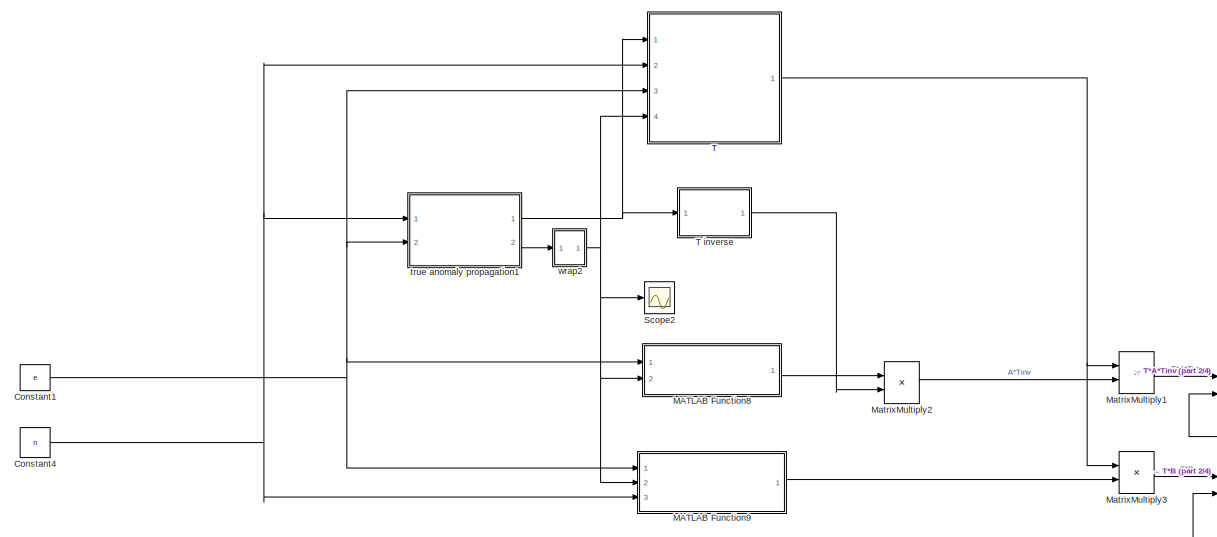
[diagram: root canvas - part 1/4, top center region]
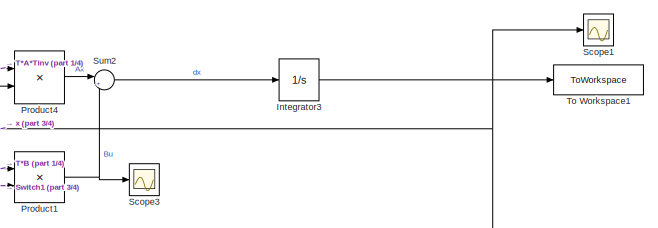
[diagram: root canvas - part 2/4, middle right region]
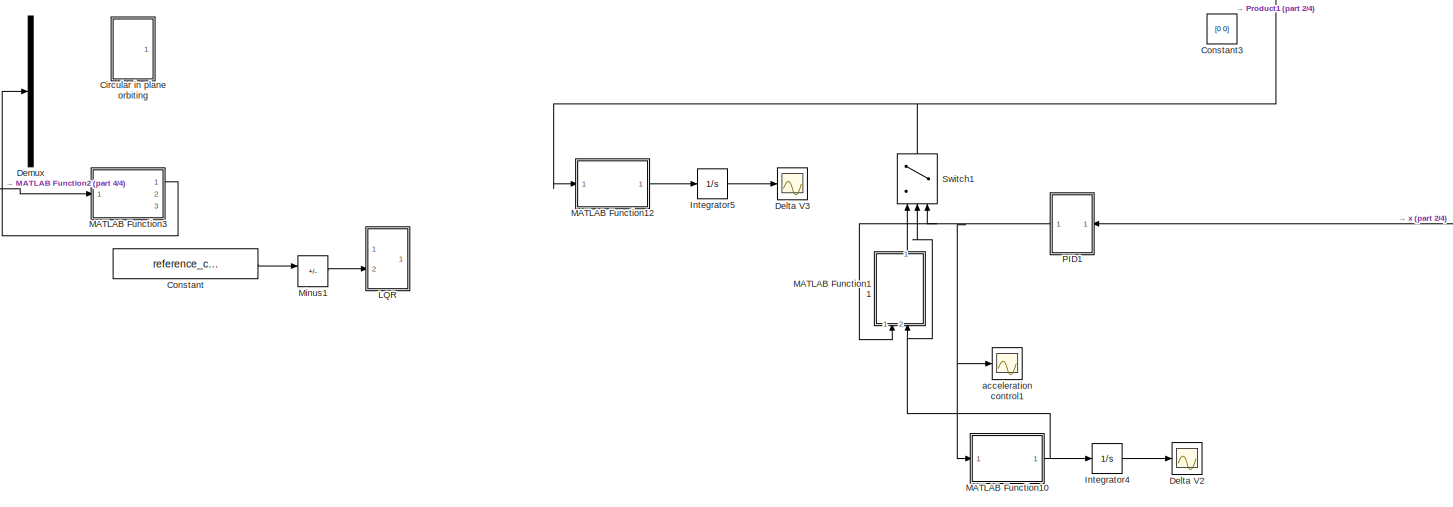
[diagram: root canvas - part 3/4, bottom center region]
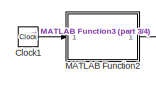
[diagram: root canvas - part 4/4, bottom left region]
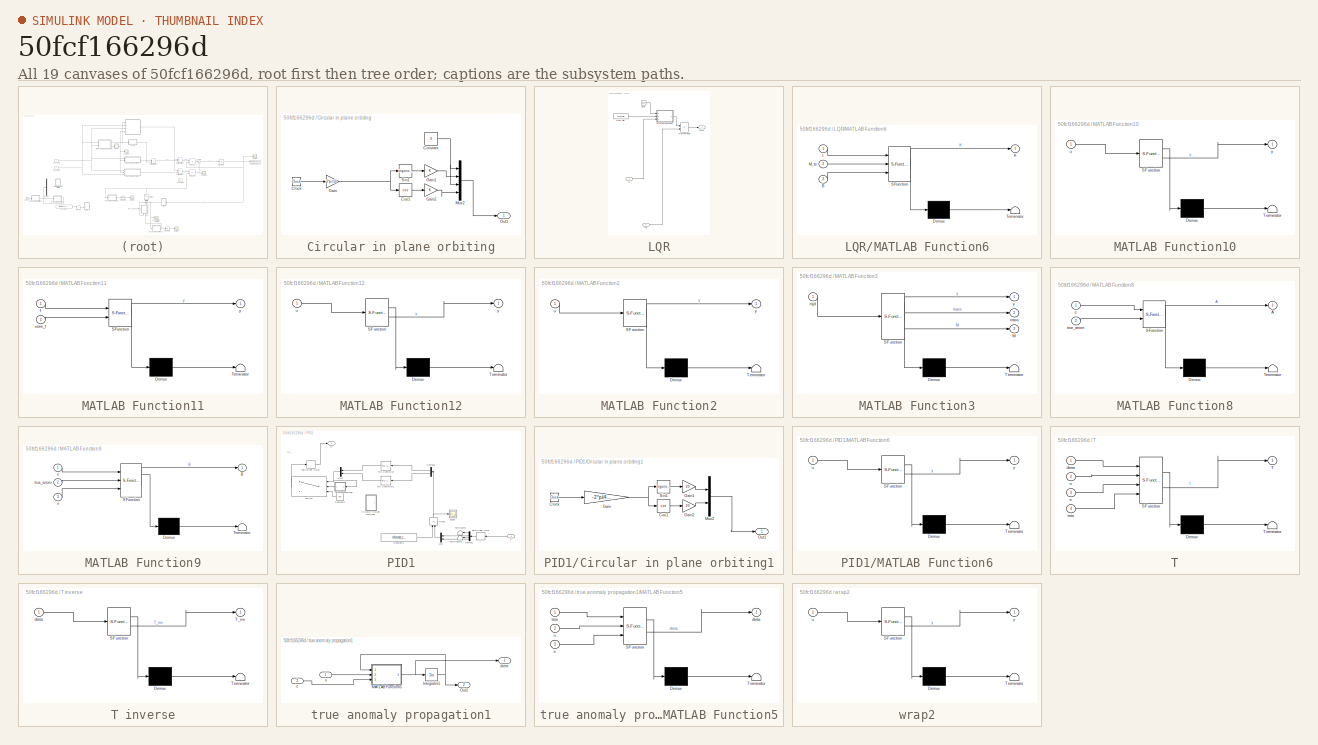
[diagram: thumbnail index - all 19 canvases of the model, root first then tree order]
MODEL slx_50fcf166296d
KIND model
CONFIG AbsTol = auto
CONFIG EnableMultiTasking = off
CONFIG FixedStep = auto
CONFIG MaxStep = auto
CONFIG MinStep = auto
CONFIG RelTol = 1e-3
CONFIG SampleTimeConstraint = Unconstrained
CONFIG SolverName = VariableStepAuto
CONFIG StartTime = 0.0
CONFIG StopTime = 10000
BLOCK [SubSystem] Circular in plane orbiting
  Commented = on
  Ports = [0, 1]
  RequestExecContextInheritance = off
BLOCK [Clock] Circular in plane orbiting/Clock
BLOCK [Constant] Circular in plane orbiting/Constant
  Value = 0
BLOCK [Trigonometry] Circular in plane orbiting/Cos1
  Operator = cos
  Ports = [1, 1]
BLOCK [Gain] Circular in plane orbiting/Gain
  Gain = -2*pi/10
BLOCK [Gain] Circular in plane orbiting/Gain1
BLOCK [Gain] Circular in plane orbiting/Gain2
BLOCK [Mux] Circular in plane orbiting/Mux2
  DisplayOption = bar
  Ports = [4, 1]
BLOCK [Outport] Circular in plane orbiting/Out1
BLOCK [Trigonometry] Circular in plane orbiting/Sin1
  Ports = [1, 1]
BLOCK [Clock] Clock1
  Commented = on
BLOCK [Constant] Constant
  Commented = on
  Value = reference_conds
BLOCK [Constant] Constant1
  Value = e
BLOCK [Constant] Constant3
  Commented = on
  Value = [0 0]
BLOCK [Constant] Constant4
  Value = n
BLOCK [Scope] Delta V2
  Floating = off
  NumInputPorts = 1
  Ports = [1]
  ScopeSpecificationString = Simulink.scopes.TimeScopeBlockCfg('CurrentConfiguration', extmgr.ConfigurationSet(extmgr.Configuration('Core','General UI',true),extmgr.Configuration('Core','Source UI',true),extmgr.Configuration('Sources','WiredSimulink',true,'DataLoggingVariableName','ScopeData4'),extmgr.Configuration('Visuals','Time Domain',true,'SerializedDisplays',{struct('MinYLimReal','-0.68281','MaxYLimReal','6.14531','YLab...<+1397ch>
BLOCK [Scope] Delta V3
  Floating = off
  NumInputPorts = 1
  Ports = [1]
  ScopeSpecificationString = Simulink.scopes.TimeScopeBlockCfg('CurrentConfiguration', extmgr.ConfigurationSet(extmgr.Configuration('Core','General UI',true),extmgr.Configuration('Core','Source UI',true),extmgr.Configuration('Sources','WiredSimulink',true,'DataLoggingVariableName','ScopeData5'),extmgr.Configuration('Visuals','Time Domain',true,'SerializedDisplays',{struct('MinYLimReal','-107.91961','MaxYLimReal','971.27648','...<+1411ch>
BLOCK [Demux] Demux
  Commented = on
  Outputs = 6
  Ports = [1, 6]
BLOCK [Integrator] Integrator3
  InitialCondition = init_conds
  Ports = [1, 1]
BLOCK [Integrator] Integrator4
  Ports = [1, 1]
BLOCK [Integrator] Integrator5
  Ports = [1, 1]
BLOCK [SubSystem] LQR
  Commented = on
  Ports = [2, 1]
  RequestExecContextInheritance = off
BLOCK [Inport] LQR/B
BLOCK [Clock] LQR/Clock
BLOCK [FromFile] LQR/From File
  FileName = M_LQR.mat
  SampleTime = 0
BLOCK [Inport] LQR/In2
  Port = 2
BLOCK [SubSystem] LQR/MATLAB Function6
  ErrorFcn = Stateflow.Translate.translate
  PermitHierarchicalResolution = ExplicitOnly
  Ports = [3, 1]
  RequestExecContextInheritance = off
  SFBlockType = MATLAB Function
  TreatAsAtomicUnit = on
BLOCK [Demux] LQR/MATLAB Function6/ Demux 
  Outputs = 1
  Ports = [1, 1]
BLOCK [S-Function] LQR/MATLAB Function6/ SFunction 
  EnableBusSupport = on
  FunctionName = sf_sfun
  PortCounts = [3 2]
  Ports = [3, 2]
  SFcnIsStateOwnerBlock = off
  SFunctionDeploymentMode = off
  Tag = Stateflow S-Function 7
BLOCK [Terminator] LQR/MATLAB Function6/ Terminator 
BLOCK [Inport] LQR/MATLAB Function6/B
  Port = 3
BLOCK [Outport] LQR/MATLAB Function6/K
BLOCK [Inport] LQR/MATLAB Function6/M_ts
  Port = 2
BLOCK [Inport] LQR/MATLAB Function6/t
BLOCK [Product] LQR/MatrixMultiply
  Multiplication = Matrix(*)
  Ports = [2, 1]
BLOCK [Outport] LQR/Out1
BLOCK [SubSystem] MATLAB Function10
  ErrorFcn = Stateflow.Translate.translate
  PermitHierarchicalResolution = ExplicitOnly
  Ports = [1, 1]
  RequestExecContextInheritance = off
  SFBlockType = MATLAB Function
  TreatAsAtomicUnit = on
BLOCK [Demux] MATLAB Function10/ Demux 
  Outputs = 1
  Ports = [1, 1]
BLOCK [S-Function] MATLAB Function10/ SFunction 
  EnableBusSupport = on
  FunctionName = sf_sfun
  PortCounts = [1 2]
  Ports = [1, 2]
  SFcnIsStateOwnerBlock = off
  SFunctionDeploymentMode = off
  Tag = Stateflow S-Function 20
BLOCK [Terminator] MATLAB Function10/ Terminator 
BLOCK [Inport] MATLAB Function10/u
BLOCK [Outport] MATLAB Function10/y
BLOCK [SubSystem] MATLAB Function11
  ErrorFcn = Stateflow.Translate.translate
  NameLocation = right
  PermitHierarchicalResolution = ExplicitOnly
  Ports = [2, 1]
  RequestExecContextInheritance = off
  SFBlockType = MATLAB Function
  TreatAsAtomicUnit = on
BLOCK [Demux] MATLAB Function11/ Demux 
  Outputs = 1
  Ports = [1, 1]
BLOCK [S-Function] MATLAB Function11/ SFunction 
  EnableBusSupport = on
  FunctionName = sf_sfun
  PortCounts = [2 2]
  Ports = [2, 2]
  SFcnIsStateOwnerBlock = off
  SFunctionDeploymentMode = off
  Tag = Stateflow S-Function 21
BLOCK [Terminator] MATLAB Function11/ Terminator 
BLOCK [Inport] MATLAB Function11/f
BLOCK [Inport] MATLAB Function11/norm_f
  Port = 2
BLOCK [Outport] MATLAB Function11/y
BLOCK [SubSystem] MATLAB Function12
  ErrorFcn = Stateflow.Translate.translate
  PermitHierarchicalResolution = ExplicitOnly
  Ports = [1, 1]
  RequestExecContextInheritance = off
  SFBlockType = MATLAB Function
  TreatAsAtomicUnit = on
BLOCK [Demux] MATLAB Function12/ Demux 
  Outputs = 1
  Ports = [1, 1]
BLOCK [S-Function] MATLAB Function12/ SFunction 
  EnableBusSupport = on
  FunctionName = sf_sfun
  PortCounts = [1 2]
  Ports = [1, 2]
  SFcnIsStateOwnerBlock = off
  SFunctionDeploymentMode = off
  Tag = Stateflow S-Function 22
BLOCK [Terminator] MATLAB Function12/ Terminator 
BLOCK [Inport] MATLAB Function12/u
BLOCK [Outport] MATLAB Function12/y
BLOCK [SubSystem] MATLAB Function2
  Commented = on
  ErrorFcn = Stateflow.Translate.translate
  PermitHierarchicalResolution = ExplicitOnly
  Ports = [1, 1]
  RequestExecContextInheritance = off
  SFBlockType = MATLAB Function
  TreatAsAtomicUnit = on
BLOCK [Demux] MATLAB Function2/ Demux 
  Outputs = 1
  Ports = [1, 1]
BLOCK [S-Function] MATLAB Function2/ SFunction 
  EnableBusSupport = on
  FunctionName = sf_sfun
  PortCounts = [1 2]
  Ports = [1, 2]
  SFcnIsStateOwnerBlock = off
  SFunctionDeploymentMode = off
  Tag = Stateflow S-Function 3
BLOCK [Terminator] MATLAB Function2/ Terminator 
BLOCK [Inport] MATLAB Function2/u
BLOCK [Outport] MATLAB Function2/y
BLOCK [SubSystem] MATLAB Function3
  Commented = on
  ErrorFcn = Stateflow.Translate.translate
  PermitHierarchicalResolution = ExplicitOnly
  Ports = [1, 3]
  RequestExecContextInheritance = off
  SFBlockType = MATLAB Function
  TreatAsAtomicUnit = on
BLOCK [Demux] MATLAB Function3/ Demux 
  Outputs = 1
  Ports = [1, 1]
BLOCK [S-Function] MATLAB Function3/ SFunction 
  EnableBusSupport = on
  FunctionName = sf_sfun
  PortCounts = [1 4]
  Ports = [1, 4]
  SFcnIsStateOwnerBlock = off
  SFunctionDeploymentMode = off
  Tag = Stateflow S-Function 4
BLOCK [Terminator] MATLAB Function3/ Terminator 
BLOCK [Outport] MATLAB Function3/M
  Port = 3
BLOCK [Outport] MATLAB Function3/mass
  Port = 2
BLOCK [Inport] MATLAB Function3/mjd
BLOCK [Outport] MATLAB Function3/y
BLOCK [SubSystem] MATLAB Function8
  ErrorFcn = Stateflow.Translate.translate
  PermitHierarchicalResolution = ExplicitOnly
  Ports = [2, 1]
  RequestExecContextInheritance = off
  SFBlockType = MATLAB Function
  TreatAsAtomicUnit = on
BLOCK [Demux] MATLAB Function8/ Demux 
  Outputs = 1
  Ports = [1, 1]
BLOCK [S-Function] MATLAB Function8/ SFunction 
  EnableBusSupport = on
  FunctionName = sf_sfun
  PortCounts = [2 2]
  Ports = [2, 2]
  SFcnIsStateOwnerBlock = off
  SFunctionDeploymentMode = off
  Tag = Stateflow S-Function 14
BLOCK [Terminator] MATLAB Function8/ Terminator 
BLOCK [Outport] MATLAB Function8/A
BLOCK [Inport] MATLAB Function8/e
BLOCK [Inport] MATLAB Function8/true_anom
  Port = 2
BLOCK [SubSystem] MATLAB Function9
  ErrorFcn = Stateflow.Translate.translate
  PermitHierarchicalResolution = ExplicitOnly
  Ports = [3, 1]
  RequestExecContextInheritance = off
  SFBlockType = MATLAB Function
  TreatAsAtomicUnit = on
BLOCK [Demux] MATLAB Function9/ Demux 
  Outputs = 1
  Ports = [1, 1]
BLOCK [S-Function] MATLAB Function9/ SFunction 
  EnableBusSupport = on
  FunctionName = sf_sfun
  PortCounts = [3 2]
  Ports = [3, 2]
  SFcnIsStateOwnerBlock = off
  SFunctionDeploymentMode = off
  Tag = Stateflow S-Function 15
BLOCK [Terminator] MATLAB Function9/ Terminator 
BLOCK [Outport] MATLAB Function9/B
BLOCK [Inport] MATLAB Function9/e
BLOCK [Inport] MATLAB Function9/n
  Port = 3
BLOCK [Inport] MATLAB Function9/true_anom
  Port = 2
BLOCK [Product] MatrixMultiply1
  Multiplication = Matrix(*)
  Ports = [2, 1]
BLOCK [Product] MatrixMultiply2
  Multiplication = Matrix(*)
  Ports = [2, 1]
BLOCK [Product] MatrixMultiply3
  Multiplication = Matrix(*)
  Ports = [2, 1]
BLOCK [Sum] Minus1
  Commented = on
  IconShape = rectangular
  Inputs = +-
  Ports = [2, 1]
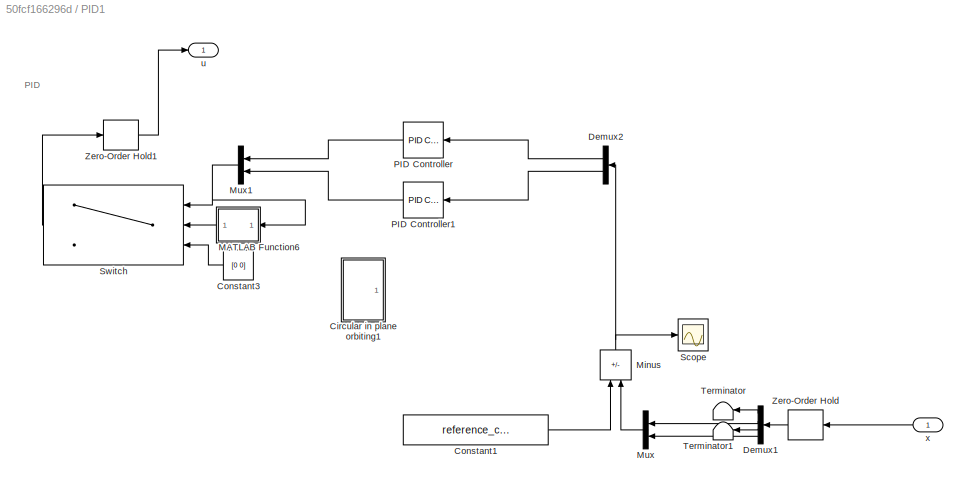
BLOCK [SubSystem] PID1
  NameLocation = top
  Ports = [1, 1]
  RequestExecContextInheritance = off
BLOCK [SubSystem] PID1/Circular in plane orbiting1
  Commented = on
  Ports = [0, 1]
  RequestExecContextInheritance = off
BLOCK [Clock] PID1/Circular in plane orbiting1/Clock
BLOCK [Trigonometry] PID1/Circular in plane orbiting1/Cos1
  Operator = cos
  Ports = [1, 1]
BLOCK [Gain] PID1/Circular in plane orbiting1/Gain
  Gain = -2*pi/43200
BLOCK [Gain] PID1/Circular in plane orbiting1/Gain1
  Gain = 20
BLOCK [Gain] PID1/Circular in plane orbiting1/Gain2
  Gain = 20
BLOCK [Mux] PID1/Circular in plane orbiting1/Mux2
  DisplayOption = bar
  Inputs = 2
  Ports = [2, 1]
BLOCK [Outport] PID1/Circular in plane orbiting1/Out1
BLOCK [Trigonometry] PID1/Circular in plane orbiting1/Sin1
  Ports = [1, 1]
BLOCK [Constant] PID1/Constant1
  Value = reference_conds
BLOCK [Constant] PID1/Constant3
  NameLocation = top
  Value = [0 0]
BLOCK [Demux] PID1/Demux1
  NameLocation = top
  Ports = [1, 4]
BLOCK [Demux] PID1/Demux2
  NameLocation = top
  Outputs = 2
  Ports = [1, 2]
BLOCK [SubSystem] PID1/MATLAB Function6
  ErrorFcn = Stateflow.Translate.translate
  NameLocation = top
  PermitHierarchicalResolution = ExplicitOnly
  Ports = [1, 1]
  RequestExecContextInheritance = off
  SFBlockType = MATLAB Function
  TreatAsAtomicUnit = on
BLOCK [Demux] PID1/MATLAB Function6/ Demux 
  Outputs = 1
  Ports = [1, 1]
BLOCK [S-Function] PID1/MATLAB Function6/ SFunction 
  EnableBusSupport = on
  FunctionName = sf_sfun
  PortCounts = [1 2]
  Ports = [1, 2]
  SFcnIsStateOwnerBlock = off
  SFunctionDeploymentMode = off
  Tag = Stateflow S-Function 23
BLOCK [Terminator] PID1/MATLAB Function6/ Terminator 
BLOCK [Inport] PID1/MATLAB Function6/u
BLOCK [Outport] PID1/MATLAB Function6/y
BLOCK [Sum] PID1/Minus
  IconShape = rectangular
  Inputs = +-
  NameLocation = right
  Ports = [2, 1]
BLOCK [Mux] PID1/Mux
  DisplayOption = bar
  Inputs = 2
  NameLocation = top
  Ports = [2, 1]
BLOCK [Mux] PID1/Mux1
  DisplayOption = bar
  Inputs = 2
  NameLocation = top
  Ports = [2, 1]
BLOCK [Reference] PID1/PID Controller  REF=pid_lib/PID Controller
  NameLocation = top
  Ports = [1, 1]
  SourceBlock = pid_lib/PID Controller
  SourceProductBaseCode = SL
  SourceType = PID 1dof
BLOCK [Reference] PID1/PID Controller1  REF=pid_lib/PID Controller
  NameLocation = top
  Ports = [1, 1]
  SourceBlock = pid_lib/PID Controller
  SourceProductBaseCode = SL
  SourceType = PID 1dof
BLOCK [Scope] PID1/Scope
  Floating = off
  NumInputPorts = 1
  Ports = [1]
  ScopeSpecificationString = Simulink.scopes.TimeScopeBlockCfg('CurrentConfiguration', extmgr.ConfigurationSet(extmgr.Configuration('Core','General UI',true),extmgr.Configuration('Core','Source UI',true),extmgr.Configuration('Sources','WiredSimulink',true,'DataLoggingVariableName','ScopeData2'),extmgr.Configuration('Visuals','Time Domain',true,'SerializedDisplays',{struct('MinYLimReal','-12.40221','MaxYLimReal','23.60025','YL...<+1382ch>
BLOCK [Switch] PID1/Switch
  Criteria = u2 > Threshold
  InputSameDT = off
  NameLocation = top
  SaturateOnIntegerOverflow = off
  Threshold = 10^(-8)
BLOCK [Terminator] PID1/Terminator
  NameLocation = top
BLOCK [Terminator] PID1/Terminator1
  NameLocation = top
BLOCK [ZeroOrderHold] PID1/Zero-Order Hold
  NameLocation = top
BLOCK [ZeroOrderHold] PID1/Zero-Order Hold1
BLOCK [Outport] PID1/u
BLOCK [Inport] PID1/x
  NameLocation = top
BLOCK [Product] Product1
  Multiplication = Matrix(*)
  Ports = [2, 1]
  SCDEnableBlockLinearizationSpecification = on
BLOCK [Product] Product4
  Multiplication = Matrix(*)
  NameLocation = top
  Ports = [2, 1]
  SCDEnableBlockLinearizationSpecification = on
BLOCK [Scope] Scope1
  Floating = off
  NumInputPorts = 1
  Ports = [1]
  ScopeSpecificationString = Simulink.scopes.TimeScopeBlockCfg('CurrentConfiguration', extmgr.ConfigurationSet(extmgr.Configuration('Core','General UI',true),extmgr.Configuration('Core','Source UI',true),extmgr.Configuration('Sources','WiredSimulink',true,'DataLoggingVariableName','ScopeData1'),extmgr.Configuration('Visuals','Time Domain',true,'SerializedDisplays',{struct('MinYLimReal','-3928167.67533','MaxYLimReal','1965952....<+1563ch>
BLOCK [Scope] Scope2
  Floating = off
  NumInputPorts = 1
  Ports = [1]
  ScopeSpecificationString = Simulink.scopes.TimeScopeBlockCfg('CurrentConfiguration', extmgr.ConfigurationSet(extmgr.Configuration('Core','General UI',true),extmgr.Configuration('Core','Source UI',true),extmgr.Configuration('Sources','WiredSimulink',true,'DataLoggingVariableName','ScopeData2'),extmgr.Configuration('Visuals','Time Domain',true,'SerializedDisplays',{struct('MinYLimReal','-0.78542','MaxYLimReal','7.06882','YLab...<+1402ch>
BLOCK [Scope] Scope3
  Floating = off
  NumInputPorts = 1
  Ports = [1]
  ScopeSpecificationString = Simulink.scopes.TimeScopeBlockCfg('CurrentConfiguration', extmgr.ConfigurationSet(extmgr.Configuration('Core','General UI',true),extmgr.Configuration('Core','Source UI',true),extmgr.Configuration('Sources','WiredSimulink',true,'DataLoggingVariableName','ScopeData3'),extmgr.Configuration('Visuals','Time Domain',true,'SerializedDisplays',{struct('MinYLimReal','-1.00000','MaxYLimReal','1.00000','YLab...<+1384ch>
BLOCK [Sum] Sum2
  Inputs = |++
  Ports = [2, 1]
BLOCK [Switch] Switch1
  Criteria = u2 > Threshold
  InputSameDT = off
  NameLocation = right
  SaturateOnIntegerOverflow = off
  Threshold = 0.01
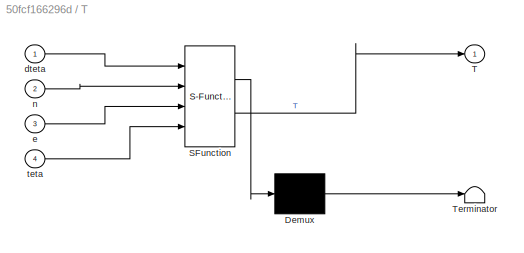
BLOCK [SubSystem] T
  ErrorFcn = Stateflow.Translate.translate
  PermitHierarchicalResolution = ExplicitOnly
  Ports = [4, 1]
  RequestExecContextInheritance = off
  SFBlockType = MATLAB Function
  TreatAsAtomicUnit = on
BLOCK [SubSystem] T inverse
  ErrorFcn = Stateflow.Translate.translate
  PermitHierarchicalResolution = ExplicitOnly
  Ports = [1, 1]
  RequestExecContextInheritance = off
  SFBlockType = MATLAB Function
  TreatAsAtomicUnit = on
BLOCK [Demux] T inverse/ Demux 
  Outputs = 1
  Ports = [1, 1]
BLOCK [S-Function] T inverse/ SFunction 
  EnableBusSupport = on
  FunctionName = sf_sfun
  PortCounts = [1 2]
  Ports = [1, 2]
  SFcnIsStateOwnerBlock = off
  SFunctionDeploymentMode = off
  Tag = Stateflow S-Function 17
BLOCK [Terminator] T inverse/ Terminator 
BLOCK [Outport] T inverse/T_inv
BLOCK [Inport] T inverse/dteta
BLOCK [Demux] T/ Demux 
  Outputs = 1
  Ports = [1, 1]
BLOCK [S-Function] T/ SFunction 
  EnableBusSupport = on
  FunctionName = sf_sfun
  PortCounts = [4 2]
  Ports = [4, 2]
  SFcnIsStateOwnerBlock = off
  SFunctionDeploymentMode = off
  Tag = Stateflow S-Function 16
BLOCK [Terminator] T/ Terminator 
BLOCK [Outport] T/T
BLOCK [Inport] T/dteta
BLOCK [Inport] T/e
  Port = 3
BLOCK [Inport] T/n
  Port = 2
BLOCK [Inport] T/teta
  Port = 4
BLOCK [ToWorkspace] To Workspace1
  FixptAsFi = on
  MaxDataPoints = inf
  Ports = [1]
  SampleTime = -1
  SaveFormat = Timeseries
  VariableName = simout
BLOCK [Scope] acceleration control1
  Floating = off
  NumInputPorts = 1
  Ports = [1]
  ScopeSpecificationString = Simulink.scopes.TimeScopeBlockCfg('CurrentConfiguration', extmgr.ConfigurationSet(extmgr.Configuration('Core','General UI',true),extmgr.Configuration('Core','Source UI',true),extmgr.Configuration('Sources','WiredSimulink',true,'DataLoggingVariableName','ScopeData6'),extmgr.Configuration('Visuals','Time Domain',true,'SerializedDisplays',{struct('MinYLimReal','-170.27229','MaxYLimReal','525.54853','...<+1418ch>
BLOCK [SubSystem] true anomaly propagation1
  Ports = [2, 2]
  RequestExecContextInheritance = off
BLOCK [Integrator] true anomaly propagation1/Integrator1
  Ports = [1, 1]
BLOCK [SubSystem] true anomaly propagation1/MATLAB Function5
  ErrorFcn = Stateflow.Translate.translate
  PermitHierarchicalResolution = ExplicitOnly
  Ports = [3, 1]
  RequestExecContextInheritance = off
  SFBlockType = MATLAB Function
  TreatAsAtomicUnit = on
BLOCK [Demux] true anomaly propagation1/MATLAB Function5/ Demux 
  Outputs = 1
  Ports = [1, 1]
BLOCK [S-Function] true anomaly propagation1/MATLAB Function5/ SFunction 
  EnableBusSupport = on
  FunctionName = sf_sfun
  PortCounts = [3 2]
  Ports = [3, 2]
  SFcnIsStateOwnerBlock = off
  SFunctionDeploymentMode = off
  Tag = Stateflow S-Function 18
BLOCK [Terminator] true anomaly propagation1/MATLAB Function5/ Terminator 
BLOCK [Outport] true anomaly propagation1/MATLAB Function5/dteta
BLOCK [Inport] true anomaly propagation1/MATLAB Function5/e
  Port = 3
BLOCK [Inport] true anomaly propagation1/MATLAB Function5/n
  Port = 2
BLOCK [Inport] true anomaly propagation1/MATLAB Function5/teta
BLOCK [Outport] true anomaly propagation1/Out2
  Port = 2
BLOCK [Outport] true anomaly propagation1/dteta
BLOCK [Inport] true anomaly propagation1/e
  Port = 2
BLOCK [Inport] true anomaly propagation1/n
BLOCK [SubSystem] wrap2
  ErrorFcn = Stateflow.Translate.translate
  PermitHierarchicalResolution = ExplicitOnly
  Ports = [1, 1]
  RequestExecContextInheritance = off
  SFBlockType = MATLAB Function
  TreatAsAtomicUnit = on
BLOCK [Demux] wrap2/ Demux 
  Outputs = 1
  Ports = [1, 1]
BLOCK [S-Function] wrap2/ SFunction 
  EnableBusSupport = on
  FunctionName = sf_sfun
  PortCounts = [1 2]
  Ports = [1, 2]
  SFcnIsStateOwnerBlock = off
  SFunctionDeploymentMode = off
  Tag = Stateflow S-Function 19
BLOCK [Terminator] wrap2/ Terminator 
BLOCK [Inport] wrap2/u
BLOCK [Outport] wrap2/y
ANNOTATION PID1: PID
LINE Circular in plane orbiting/Clock:1 -> Circular in plane orbiting/Gain:1
NET Circular in plane orbiting/Constant:1 -> Circular in plane orbiting/Mux2:1, Circular in plane orbiting/Mux2:3
LINE Circular in plane orbiting/Cos1:1 -> Circular in plane orbiting/Gain2:1
LINE Circular in plane orbiting/Gain1:1 -> Circular in plane orbiting/Mux2:2
LINE Circular in plane orbiting/Gain2:1 -> Circular in plane orbiting/Mux2:4
NET Circular in plane orbiting/Gain:1 -> Circular in plane orbiting/Cos1:1, Circular in plane orbiting/Sin1:1
LINE Circular in plane orbiting/Mux2:1 -> Circular in plane orbiting/Out1:1
LINE Circular in plane orbiting/Sin1:1 -> Circular in plane orbiting/Gain1:1
LINE Clock1:1 -> MATLAB Function2:1
NET Constant1:1 -> MATLAB Function8:1, MATLAB Function9:1, T:3, true anomaly propagation1:2
NET Constant4:1 -> MATLAB Function9:3, T:2, true anomaly propagation1:1
LINE Constant:1 -> Minus1:1
NET Integrator3:1 -> PID1:1, Product4:2, Scope1:1, To Workspace1:1
LINE Integrator4:1 -> Delta V2:1
LINE Integrator5:1 -> Delta V3:1
LINE LQR/B:1 -> LQR/MATLAB Function6:3
LINE LQR/Clock:1 -> LQR/MATLAB Function6:1
LINE LQR/From File:1 -> LQR/MATLAB Function6:2
LINE LQR/In2:1 -> LQR/MatrixMultiply:2
LINE LQR/MATLAB Function6:1 -> LQR/MatrixMultiply:1
LINE LQR/MatrixMultiply:1 -> LQR/Out1:1
NET MATLAB Function10:1 -> Integrator4:1, MATLAB Function11:2, Switch1:2
LINE MATLAB Function11:1 -> Switch1:1
LINE MATLAB Function12:1 -> Integrator5:1
LINE MATLAB Function2:1 -> MATLAB Function3:1
LINE MATLAB Function3:1 -> Demux:1
LINE MATLAB Function8:1 -> MatrixMultiply2:1
LINE MATLAB Function9:1 -> MatrixMultiply3:2
LINE MatrixMultiply1:1 -> Product4:1
LINE MatrixMultiply2:1 -> MatrixMultiply1:2
LINE MatrixMultiply3:1 -> Product1:1
LINE Minus1:1 -> LQR:2
LINE PID1/Circular in plane orbiting1/Clock:1 -> PID1/Circular in plane orbiting1/Gain:1
LINE PID1/Circular in plane orbiting1/Cos1:1 -> PID1/Circular in plane orbiting1/Gain2:1
LINE PID1/Circular in plane orbiting1/Gain1:1 -> PID1/Circular in plane orbiting1/Mux2:1
LINE PID1/Circular in plane orbiting1/Gain2:1 -> PID1/Circular in plane orbiting1/Mux2:2
NET PID1/Circular in plane orbiting1/Gain:1 -> PID1/Circular in plane orbiting1/Cos1:1, PID1/Circular in plane orbiting1/Sin1:1
LINE PID1/Circular in plane orbiting1/Mux2:1 -> PID1/Circular in plane orbiting1/Out1:1
LINE PID1/Circular in plane orbiting1/Sin1:1 -> PID1/Circular in plane orbiting1/Gain1:1
LINE PID1/Constant1:1 -> PID1/Minus:1
LINE PID1/Constant3:1 -> PID1/Switch:3
LINE PID1/Demux1:1 -> PID1/Terminator:1
LINE PID1/Demux1:2 -> PID1/Mux:1
LINE PID1/Demux1:3 -> PID1/Terminator1:1
LINE PID1/Demux1:4 -> PID1/Mux:2
LINE PID1/Demux2:1 -> PID1/PID Controller:1
LINE PID1/Demux2:2 -> PID1/PID Controller1:1
LINE PID1/MATLAB Function6:1 -> PID1/Switch:2
NET PID1/Minus:1 -> PID1/Demux2:1, PID1/Scope:1
NET PID1/Mux1:1 -> PID1/MATLAB Function6:1, PID1/Switch:1
LINE PID1/Mux:1 -> PID1/Minus:2
LINE PID1/PID Controller1:1 -> PID1/Mux1:2
LINE PID1/PID Controller:1 -> PID1/Mux1:1
LINE PID1/Switch:1 -> PID1/Zero-Order Hold1:1
LINE PID1/Zero-Order Hold1:1 -> PID1/u:1
LINE PID1/Zero-Order Hold:1 -> PID1/Demux1:1
LINE PID1/x:1 -> PID1/Zero-Order Hold:1
NET PID1:1 -> MATLAB Function10:1, MATLAB Function11:1, Switch1:3, acceleration control1:1
NET Product1:1 -> Scope3:1, Sum2:2
LINE Product4:1 -> Sum2:1
LINE Sum2:1 -> Integrator3:1
NET Switch1:1 -> MATLAB Function12:1, Product1:2
LINE T inverse:1 -> MatrixMultiply2:2
NET T:1 -> MatrixMultiply1:1, MatrixMultiply3:1
NET true anomaly propagation1/Integrator1:1 -> true anomaly propagation1/MATLAB Function5:1, true anomaly propagation1/Out2:1
NET true anomaly propagation1/MATLAB Function5:1 -> true anomaly propagation1/Integrator1:1, true anomaly propagation1/dteta:1
LINE true anomaly propagation1/e:1 -> true anomaly propagation1/MATLAB Function5:3
LINE true anomaly propagation1/n:1 -> true anomaly propagation1/MATLAB Function5:2
NET true anomaly propagation1:1 -> T inverse:1, T:1
LINE true anomaly propagation1:2 -> wrap2:1
NET wrap2:1 -> MATLAB Function8:2, MATLAB Function9:2, Scope2:1, T:4
note: NET lines group one-source signal fan-out (src -> all destinations, sorted); 1:1 wires keep LINE
CHART MATLAB Function12 states=1 transitions=1
  STATE_LABEL 'eML_blk_kernel()'
  STATE_LABEL 'SCRIPT:\nfunction y = fcn(u)\n\ny =norm(u);\n'
CHART PID1/MATLAB Function6 states=1 transitions=1
  STATE_LABEL 'eML_blk_kernel()'
  STATE_LABEL 'SCRIPT:\nfunction y = fcn(u)\n\ny = norm(u);\n'
CHART MATLAB Function2 states=1 transitions=1
  STATE_LABEL 'eML_blk_kernel()'
  STATE_LABEL 'SCRIPT:\nfunction y = time_conv(u)\ny=double(60676+((u/3600)/24));\n'
CHART MATLAB Function3 states=1 transitions=1
  STATE_LABEL 'eML_blk_kernel()'
  STATE_LABEL 'SCRIPT:\nfunction [y, mass, M]= get_eph(mjd)\n    [y, mass, M]=ephNEO(mjd,28);\n\n'
CHART LQR/MATLAB Function6 states=1 transitions=1
  STATE_LABEL 'eML_blk_kernel()'
  STATE_LABEL "SCRIPT:\nfunction K = fcn(t,M_ts,B)\nflag=0;\n% for i=1:(length(M_ts.Time)-1)\n%     if and(t>=M_ts.Time(i),t<M_ts.Time(i+1))\n%         M=M_ts.data(i);\n%         flag=1;\n%         break\n%     else\n%         M=zeros(4,4)\n%     end\n% end\nM=reshape(M_ts,4,4);\nK=-B.'*M;\n\n"
CHART MATLAB Function8 states=1 transitions=1
  STATE_LABEL 'eML_blk_kernel()'
  STATE_LABEL 'SCRIPT:\nfunction A = A_ss(e,true_anom)\nA=[ 2*e*sin(true_anom)/(1+e*cos(true_anom)), (3+e*cos(true_anom))/(1+e*cos(true_anom)), 2, -2*e*sin(true_anom)/(1+e*cos(true_anom)); \n    1, 0, 0, 0;\n   -2, 2*e*sin(true_anom)/(1+e*cos(true_anom)), 2*e*sin(true_anom)/(1+e*cos(true_anom)), e*cos(true_anom)/(1+e*cos(true_anom));\n   0, 0, 1, 0];\n\n'
CHART MATLAB Function9 states=1 transitions=1
  STATE_LABEL 'eML_blk_kernel()'
  STATE_LABEL 'SCRIPT:\nfunction B = B_ss(e,true_anom,n)\nB=((1-(e^2))^3)/(((1+e*cos(true_anom))^4)*(n^2))*[1 0; 0 0; 0 1; 0 0];\n'
CHART T states=1 transitions=1
  STATE_LABEL 'eML_blk_kernel()'
  STATE_LABEL 'SCRIPT:\nfunction T = fcn(dteta, n,e,teta)\nT=[dteta^2 dteta*(-(n*2*(1+e*cos(teta))*e*sin(teta)/((1-e^2)^1.5))) 0 0; 0 dteta 0 0; 0 0 dteta^2 dteta*(-(n*2*(1+e*cos(teta))*e*sin(teta)/((1-e^2)^1.5))); 0 0 0 dteta];\n'
CHART T inverse states=1 transitions=1
  STATE_LABEL 'eML_blk_kernel()'
  STATE_LABEL 'SCRIPT:\nfunction T_inv = fcn(dteta)\nT_inv=[1/dteta 0 0 0; 0 1 0 0; 0 0 1/dteta 0; 0 0 0 1];\n'
CHART true anomaly propagation1/MATLAB Function5 states=1 transitions=1
  STATE_LABEL 'eML_blk_kernel()'
  STATE_LABEL 'SCRIPT:\nfunction dteta = fcn(teta,n,e)\ndteta=(n*(1+e*cos(teta))^2)/((1-e^2)^1.5);\n'
CHART wrap2 states=1 transitions=1
  STATE_LABEL 'eML_blk_kernel()'
  STATE_LABEL 'SCRIPT:\nfunction y = fcn(u)\n\ny = mod(u,2*pi);\n'
CHART MATLAB Function10 states=1 transitions=1
  STATE_LABEL 'eML_blk_kernel()'
  STATE_LABEL 'SCRIPT:\nfunction y = fcn(u)\n\ny =norm(u);\n'
CHART MATLAB Function11 states=1 transitions=1
  STATE_LABEL 'eML_blk_kernel()'
  STATE_LABEL 'SCRIPT:\nfunction y = fcn(f,norm_f)\ny=[f(1)/norm_f; f(2)/norm_f].*0.01;\n'
CHART  states=0 transitions=0
CHART  states=0 transitions=0
CHART  states=0 transitions=0
CHART  states=0 transitions=0
CHART  states=0 transitions=0
CHART  states=0 transitions=0
CHART  states=0 transitions=0
CHART  states=0 transitions=0
CHART  states=0 transitions=0
CHART  states=0 transitions=0
CHART  states=0 transitions=0
CHART  states=0 transitions=0
CHART  states=0 transitions=0
